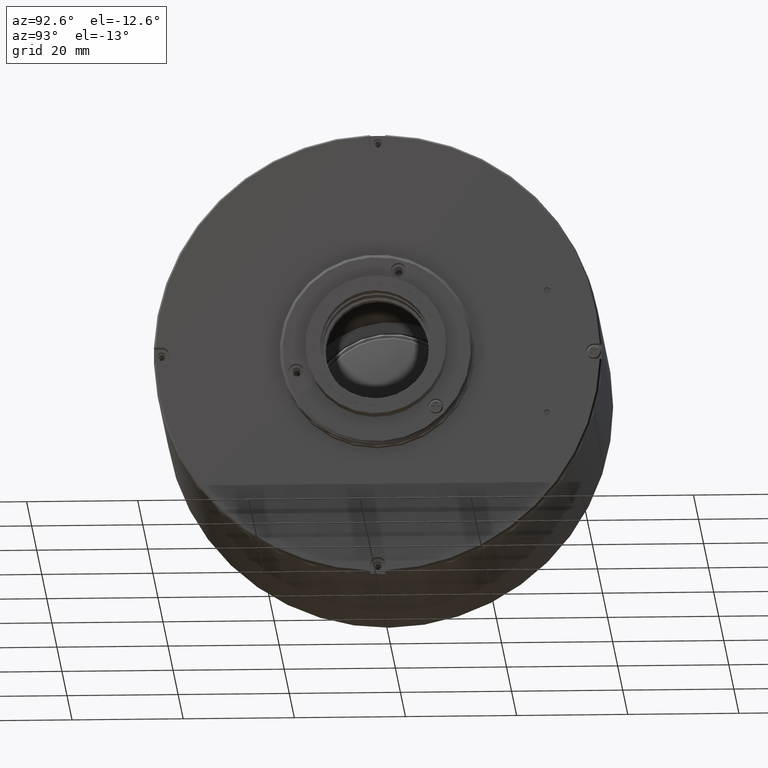
[diagram: clean part render]
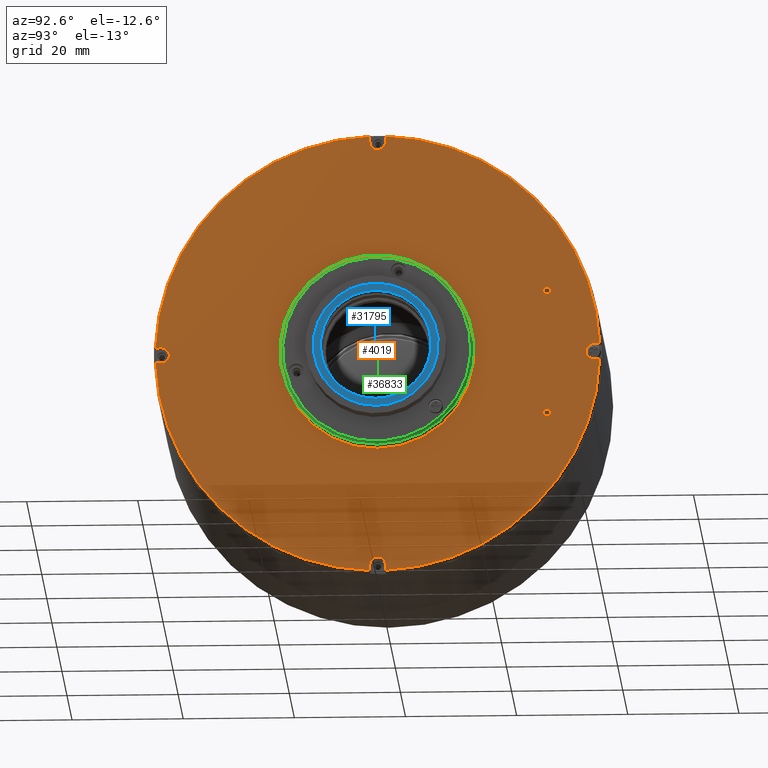
[diagram: same view with three faces highlighted in distinct colors, each labeled with its STEP entity id]
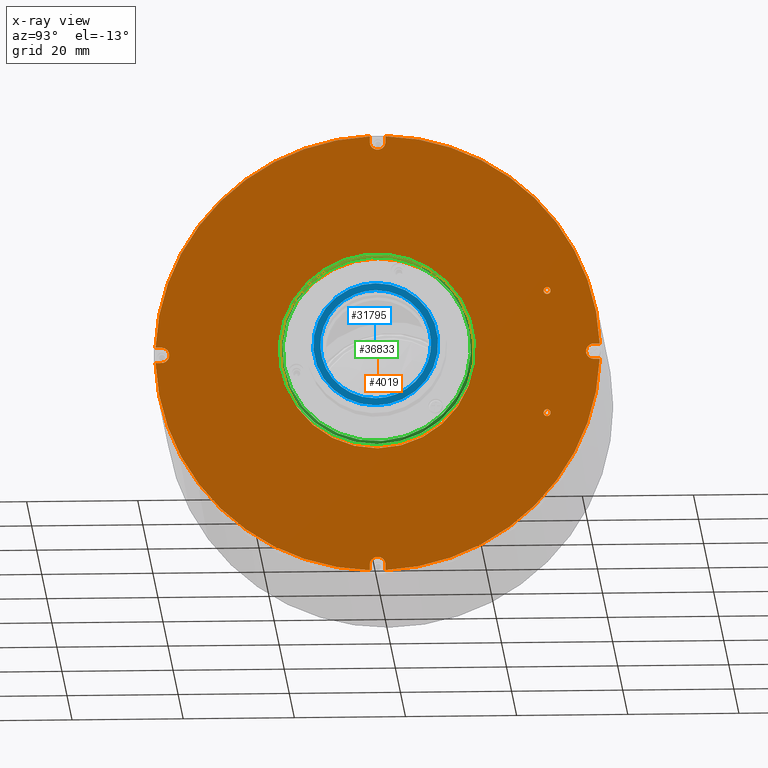
[diagram: x-ray of the same camera — body ghosted, the three highlighted faces saturated]
A machine part, auxiliary view with three faces highlighted in distinct colors.
The next image is the same camera in x-ray (body ghosted, the three faces saturated) — at least one of them is partly hidden behind the body in this view.
Their STEP definitions:

[orange] entity #4019 — the highlighted planar face has unit normal (-1, 0, 0).
#45 = VERTEX_POINT ( 'NONE', #32426 ) ;
#799 = EDGE_CURVE ( 'NONE', #23085, #34651, #17015, .T. ) ;
#1132 = ORIENTED_EDGE ( 'NONE', *, *, #40397, .F. ) ;
#1986 = VECTOR ( 'NONE', #9498, 1000.000000000000000 ) ;
#2314 = FACE_BOUND ( 'NONE', #6673, .T. ) ;
#3309 = CARTESIAN_POINT ( 'NONE',  ( 230.3208642838985156, 30.49999999999997158, -10.62500000000000888 ) ) ;
#4019 = ADVANCED_FACE ( 'NONE', ( #35631, #17383, #39273, #2314 ), #39516, .F. ) ;
#4045 = CARTESIAN_POINT ( 'NONE',  ( 230.3208642838985156, 0.000000000000000000, -1.261029084410195117E-13 ) ) ;
#4149 = DIRECTION ( 'NONE',  ( -1.000000000000000000, 0.000000000000000000, 0.000000000000000000 ) ) ;
#4308 = AXIS2_PLACEMENT_3D ( 'NONE', #4045, #18869, #40983 ) ;
#4562 = DIRECTION ( 'NONE',  ( -0.000000000000000000, -1.000000000000000000, 0.000000000000000000 ) ) ;
#5371 = LINE ( 'NONE', #35278, #1986 ) ;
#5570 = ORIENTED_EDGE ( 'NONE', *, *, #27818, .F. ) ;
#5680 = LINE ( 'NONE', #31686, #38789 ) ;
#5835 = VERTEX_POINT ( 'NONE', #13609 ) ;
#5841 = EDGE_LOOP ( 'NONE', ( #26964 ) ) ;
#5926 = CIRCLE ( 'NONE', #17553, 40.00000000000006395 ) ;
#6303 = CIRCLE ( 'NONE', #37379, 40.00000000000013500 ) ;
#6400 = ORIENTED_EDGE ( 'NONE', *, *, #15422, .F. ) ;
#6539 = DIRECTION ( 'NONE',  ( 0.000000000000000000, 1.000000000000000000, -0.000000000000000000 ) ) ;
#6673 = EDGE_LOOP ( 'NONE', ( #44554 ) ) ;
#6793 = CIRCLE ( 'NONE', #42494, 0.6250000000000976996 ) ;
#6825 = DIRECTION ( 'NONE',  ( 1.000000000000000000, 0.000000000000000000, 0.000000000000000000 ) ) ;
#7299 = EDGE_CURVE ( 'NONE', #40460, #45053, #21837, .T. ) ;
#7530 = DIRECTION ( 'NONE',  ( 0.000000000000000000, 0.000000000000000000, 1.000000000000000000 ) ) ;
#7671 = ORIENTED_EDGE ( 'NONE', *, *, #41838, .F. ) ;
#8092 = AXIS2_PLACEMENT_3D ( 'NONE', #38179, #4149, #45210 ) ;
#8156 = VECTOR ( 'NONE', #33469, 1000.000000000000000 ) ;
#8251 = VERTEX_POINT ( 'NONE', #15808 ) ;
#9423 = ORIENTED_EDGE ( 'NONE', *, *, #24612, .F. ) ;
#9498 = DIRECTION ( 'NONE',  ( -0.000000000000000000, -1.000000000000000000, 0.000000000000000000 ) ) ;
#9557 = DIRECTION ( 'NONE',  ( -0.000000000000000000, -0.000000000000000000, -1.000000000000000000 ) ) ;
#9734 = CARTESIAN_POINT ( 'NONE',  ( 230.3208642838985156, 1.400000000000511946, -1.261029084410195117E-13 ) ) ;
#10560 = EDGE_CURVE ( 'NONE', #20650, #21454, #33116, .T. ) ;
#13005 = ORIENTED_EDGE ( 'NONE', *, *, #27994, .F. ) ;
#13275 = EDGE_CURVE ( 'NONE', #35190, #31405, #5680, .T. ) ;
#13609 = CARTESIAN_POINT ( 'NONE',  ( 230.3208642838985156, 1.400000000000511946, 39.97549249227580503 ) ) ;
#13632 = EDGE_CURVE ( 'NONE', #45053, #5835, #43044, .T. ) ;
#13879 = CARTESIAN_POINT ( 'NONE',  ( 230.3208642838985156, 0.000000000000000000, -1.261029084410195117E-13 ) ) ;
#14117 = CARTESIAN_POINT ( 'NONE',  ( 230.3208642838985156, 4.440892098500626162E-13, 38.89999999999980673 ) ) ;
#14971 = ORIENTED_EDGE ( 'NONE', *, *, #23654, .F. ) ;
#15413 = EDGE_CURVE ( 'NONE', #46628, #42508, #5371, .T. ) ;
#15422 = EDGE_CURVE ( 'NONE', #33037, #40460, #19732, .T. ) ;
#15723 = ORIENTED_EDGE ( 'NONE', *, *, #15413, .F. ) ;
#15808 = CARTESIAN_POINT ( 'NONE',  ( 230.3208642838985156, 30.49999999999997158, 11.87499999999995204 ) ) ;
#16002 = DIRECTION ( 'NONE',  ( 0.000000000000000000, 0.000000000000000000, -1.000000000000000000 ) ) ;
#16124 = VECTOR ( 'NONE', #6539, 1000.000000000000000 ) ;
#16156 = ORIENTED_EDGE ( 'NONE', *, *, #7299, .F. ) ;
#16228 = CARTESIAN_POINT ( 'NONE',  ( 230.3208642838985156, 40.30000000000022453, 1.399999999999860911 ) ) ;
#17015 = LINE ( 'NONE', #43959, #16124 ) ;
#17027 = DIRECTION ( 'NONE',  ( 0.000000000000000000, 0.000000000000000000, 1.000000000000000000 ) ) ;
#17383 = FACE_OUTER_BOUND ( 'NONE', #40134, .T. ) ;
#17550 = AXIS2_PLACEMENT_3D ( 'NONE', #18060, #25344, #32874 ) ;
#17553 = AXIS2_PLACEMENT_3D ( 'NONE', #17992, #40354, #17027 ) ;
#17727 = EDGE_CURVE ( 'NONE', #40725, #40725, #44282, .T. ) ;
#17992 = CARTESIAN_POINT ( 'NONE',  ( 230.3208642838985156, 0.000000000000000000, -1.261029084410195117E-13 ) ) ;
#18060 = CARTESIAN_POINT ( 'NONE',  ( 230.3208642838985156, -2.220446049250313081E-13, -38.90000000000006253 ) ) ;
#18164 = DIRECTION ( 'NONE',  ( 0.000000000000000000, 0.000000000000000000, 1.000000000000000000 ) ) ;
#18561 = CIRCLE ( 'NONE', #20911, 1.399999999999987255 ) ;
#18869 = DIRECTION ( 'NONE',  ( -1.000000000000000000, 0.000000000000000000, 0.000000000000000000 ) ) ;
#19060 = CIRCLE ( 'NONE', #4308, 40.00000000000014211 ) ;
#19506 = AXIS2_PLACEMENT_3D ( 'NONE', #14117, #40121, #40367 ) ;
#19704 = VERTEX_POINT ( 'NONE', #21958 ) ;
#19732 = LINE ( 'NONE', #31615, #39265 ) ;
#20218 = DIRECTION ( 'NONE',  ( 0.000000000000000000, 0.000000000000000000, -1.000000000000000000 ) ) ;
#20650 = VERTEX_POINT ( 'NONE', #32649 ) ;
#20911 = AXIS2_PLACEMENT_3D ( 'NONE', #42480, #26715, #16002 ) ;
#21454 = VERTEX_POINT ( 'NONE', #42047 ) ;
#21527 = CARTESIAN_POINT ( 'NONE',  ( 230.3208642838985156, -1.399999999999623768, 39.97549249227576240 ) ) ;
#21837 = CIRCLE ( 'NONE', #19506, 1.399999999999984590 ) ;
#21958 = CARTESIAN_POINT ( 'NONE',  ( 230.3208642838985156, -39.97549249227594714, 1.399999999999860911 ) ) ;
#22598 = AXIS2_PLACEMENT_3D ( 'NONE', #37840, #44630, #18164 ) ;
#23085 = VERTEX_POINT ( 'NONE', #32654 ) ;
#23459 = EDGE_CURVE ( 'NONE', #46041, #46041, #28287, .T. ) ;
#23594 = DIRECTION ( 'NONE',  ( 0.000000000000000000, 1.000000000000000000, -0.000000000000000000 ) ) ;
#23654 = EDGE_CURVE ( 'NONE', #34651, #36252, #47684, .T. ) ;
#24584 = DIRECTION ( 'NONE',  ( 0.000000000000000000, 0.000000000000000000, 1.000000000000000000 ) ) ;
#24612 = EDGE_CURVE ( 'NONE', #31405, #27932, #19060, .T. ) ;
#24775 = CARTESIAN_POINT ( 'NONE',  ( 230.3208642838985156, 1.400000000000511946, 38.89999999999980673 ) ) ;
#25344 = DIRECTION ( 'NONE',  ( 1.000000000000000000, 0.000000000000000000, -0.000000000000000000 ) ) ;
#26238 = CARTESIAN_POINT ( 'NONE',  ( 230.3208642838985156, -1.399999999999623768, 38.89999999999980673 ) ) ;
#26715 = DIRECTION ( 'NONE',  ( 1.000000000000000000, -0.000000000000000000, -0.000000000000000000 ) ) ;
#26907 = DIRECTION ( 'NONE',  ( 0.000000000000000000, 0.000000000000000000, 1.000000000000000000 ) ) ;
#26964 = ORIENTED_EDGE ( 'NONE', *, *, #23459, .F. ) ;
#27392 = CARTESIAN_POINT ( 'NONE',  ( 230.3208642838985156, 30.49999999999997158, 11.24999999999985434 ) ) ;
#27818 = EDGE_CURVE ( 'NONE', #5835, #46628, #6303, .T. ) ;
#27932 = VERTEX_POINT ( 'NONE', #35479 ) ;
#27994 = EDGE_CURVE ( 'NONE', #27932, #20650, #35014, .T. ) ;
#28287 = CIRCLE ( 'NONE', #45355, 17.50000000000018119 ) ;
#28314 = DIRECTION ( 'NONE',  ( 0.000000000000000000, 0.000000000000000000, 1.000000000000000000 ) ) ;
#28453 = AXIS2_PLACEMENT_3D ( 'NONE', #45724, #38946, #20218 ) ;
#28651 = EDGE_CURVE ( 'NONE', #36252, #45, #29332, .T. ) ;
#29054 = CARTESIAN_POINT ( 'NONE',  ( 230.3208642838985156, 39.97549249227594714, 1.399999999999860911 ) ) ;
#29332 = LINE ( 'NONE', #44390, #8156 ) ;
#29655 = AXIS2_PLACEMENT_3D ( 'NONE', #46783, #32200, #28314 ) ;
#30679 = CARTESIAN_POINT ( 'NONE',  ( 230.3208642838985156, 39.97549249227616741, -1.400000000000113376 ) ) ;
#30817 = VECTOR ( 'NONE', #4562, 1000.000000000000000 ) ;
#31405 = VERTEX_POINT ( 'NONE', #46015 ) ;
#31451 = CARTESIAN_POINT ( 'NONE',  ( 230.3208642838985156, 0.000000000000000000, 17.50000000000005684 ) ) ;
#31615 = CARTESIAN_POINT ( 'NONE',  ( 230.3208642838985156, -1.399999999999623768, -1.261029084410195117E-13 ) ) ;
#31686 = CARTESIAN_POINT ( 'NONE',  ( 230.3208642838985156, -1.400000000000289901, -1.261029084410195117E-13 ) ) ;
#32200 = DIRECTION ( 'NONE',  ( -1.000000000000000000, 0.000000000000000000, 0.000000000000000000 ) ) ;
#32426 = CARTESIAN_POINT ( 'NONE',  ( 230.3208642838985156, 1.399999999999845812, -38.90000000000006253 ) ) ;
#32649 = CARTESIAN_POINT ( 'NONE',  ( 230.3208642838985156, -38.89999999999993463, -1.400000000000113376 ) ) ;
#32654 = CARTESIAN_POINT ( 'NONE',  ( 230.3208642838985156, 38.89999999999993463, -1.400000000000113376 ) ) ;
#32874 = DIRECTION ( 'NONE',  ( 0.000000000000000000, 0.000000000000000000, -1.000000000000000000 ) ) ;
#33037 = VERTEX_POINT ( 'NONE', #21527 ) ;
#33116 = CIRCLE ( 'NONE', #28453, 1.399999999999987255 ) ;
#33317 = EDGE_LOOP ( 'NONE', ( #36509 ) ) ;
#33469 = DIRECTION ( 'NONE',  ( 0.000000000000000000, 0.000000000000000000, 1.000000000000000000 ) ) ;
#33588 = DIRECTION ( 'NONE',  ( 0.000000000000000000, 0.000000000000000000, 1.000000000000000000 ) ) ;
#34086 = ORIENTED_EDGE ( 'NONE', *, *, #13632, .F. ) ;
#34242 = ORIENTED_EDGE ( 'NONE', *, *, #13275, .F. ) ;
#34293 = CARTESIAN_POINT ( 'NONE',  ( 230.3208642838985156, -1.400000000000289901, -38.90000000000006253 ) ) ;
#34651 = VERTEX_POINT ( 'NONE', #30679 ) ;
#35014 = LINE ( 'NONE', #42067, #35313 ) ;
#35190 = VERTEX_POINT ( 'NONE', #34293 ) ;
#35278 = CARTESIAN_POINT ( 'NONE',  ( 230.3208642838985156, 40.30000000000022453, 1.399999999999860911 ) ) ;
#35313 = VECTOR ( 'NONE', #23594, 1000.000000000000000 ) ;
#35479 = CARTESIAN_POINT ( 'NONE',  ( 230.3208642838985156, -39.97549249227594714, -1.400000000000113376 ) ) ;
#35512 = DIRECTION ( 'NONE',  ( -0.000000000000000000, -0.000000000000000000, -1.000000000000000000 ) ) ;
#35513 = EDGE_CURVE ( 'NONE', #21454, #19704, #45388, .T. ) ;
#35631 = FACE_BOUND ( 'NONE', #5841, .T. ) ;
#36252 = VERTEX_POINT ( 'NONE', #41353 ) ;
#36509 = ORIENTED_EDGE ( 'NONE', *, *, #43092, .F. ) ;
#37085 = ORIENTED_EDGE ( 'NONE', *, *, #28651, .F. ) ;
#37379 = AXIS2_PLACEMENT_3D ( 'NONE', #45220, #37946, #33588 ) ;
#37840 = CARTESIAN_POINT ( 'NONE',  ( 230.3208642838985156, 30.49999999999997158, -11.25000000000010658 ) ) ;
#37946 = DIRECTION ( 'NONE',  ( -1.000000000000000000, 0.000000000000000000, 0.000000000000000000 ) ) ;
#38179 = CARTESIAN_POINT ( 'NONE',  ( 230.3208642838983167, 0.000000000000000000, -1.261029084410195117E-13 ) ) ;
#38346 = DIRECTION ( 'NONE',  ( 1.000000000000000000, 0.000000000000000000, 0.000000000000000000 ) ) ;
#38789 = VECTOR ( 'NONE', #9557, 1000.000000000000000 ) ;
#38946 = DIRECTION ( 'NONE',  ( 1.000000000000000000, -0.000000000000000000, -0.000000000000000000 ) ) ;
#39172 = ORIENTED_EDGE ( 'NONE', *, *, #39733, .F. ) ;
#39265 = VECTOR ( 'NONE', #35512, 1000.000000000000000 ) ;
#39273 = FACE_BOUND ( 'NONE', #33317, .T. ) ;
#39516 = PLANE ( 'NONE',  #29655 ) ;
#39705 = CARTESIAN_POINT ( 'NONE',  ( 230.3208642838985156, 38.89999999999993463, 1.399999999999860911 ) ) ;
#39733 = EDGE_CURVE ( 'NONE', #42508, #23085, #18561, .T. ) ;
#40121 = DIRECTION ( 'NONE',  ( 1.000000000000000000, -0.000000000000000000, -0.000000000000000000 ) ) ;
#40134 = EDGE_LOOP ( 'NONE', ( #1132, #40711, #43075, #13005, #9423, #34242, #7671, #37085, #14971, #44098, #39172, #15723, #5570, #34086, #16156, #6400 ) ) ;
#40354 = DIRECTION ( 'NONE',  ( -1.000000000000000000, 0.000000000000000000, 0.000000000000000000 ) ) ;
#40367 = DIRECTION ( 'NONE',  ( 0.000000000000000000, 0.000000000000000000, -1.000000000000000000 ) ) ;
#40397 = EDGE_CURVE ( 'NONE', #19704, #33037, #5926, .T. ) ;
#40460 = VERTEX_POINT ( 'NONE', #26238 ) ;
#40711 = ORIENTED_EDGE ( 'NONE', *, *, #35513, .F. ) ;
#40725 = VERTEX_POINT ( 'NONE', #3309 ) ;
#40983 = DIRECTION ( 'NONE',  ( 0.000000000000000000, 0.000000000000000000, 1.000000000000000000 ) ) ;
#41353 = CARTESIAN_POINT ( 'NONE',  ( 230.3208642838985156, 1.399999999999845812, -39.97549249227625978 ) ) ;
#41838 = EDGE_CURVE ( 'NONE', #45, #35190, #44711, .T. ) ;
#42047 = CARTESIAN_POINT ( 'NONE',  ( 230.3208642838985156, -38.89999999999993463, 1.399999999999860911 ) ) ;
#42067 = CARTESIAN_POINT ( 'NONE',  ( 230.3208642838985156, 40.30000000000022453, -1.400000000000113376 ) ) ;
#42480 = CARTESIAN_POINT ( 'NONE',  ( 230.3208642838985156, 38.89999999999993463, -1.261029084410195117E-13 ) ) ;
#42494 = AXIS2_PLACEMENT_3D ( 'NONE', #27392, #38346, #26907 ) ;
#42508 = VERTEX_POINT ( 'NONE', #39705 ) ;
#43044 = LINE ( 'NONE', #9734, #47330 ) ;
#43075 = ORIENTED_EDGE ( 'NONE', *, *, #10560, .F. ) ;
#43092 = EDGE_CURVE ( 'NONE', #8251, #8251, #6793, .T. ) ;
#43959 = CARTESIAN_POINT ( 'NONE',  ( 230.3208642838985156, 40.30000000000022453, -1.400000000000113376 ) ) ;
#44098 = ORIENTED_EDGE ( 'NONE', *, *, #799, .F. ) ;
#44282 = CIRCLE ( 'NONE', #22598, 0.6250000000000976996 ) ;
#44390 = CARTESIAN_POINT ( 'NONE',  ( 230.3208642838985156, 1.399999999999845812, -1.261029084410195117E-13 ) ) ;
#44554 = ORIENTED_EDGE ( 'NONE', *, *, #17727, .F. ) ;
#44630 = DIRECTION ( 'NONE',  ( 1.000000000000000000, 0.000000000000000000, 0.000000000000000000 ) ) ;
#44711 = CIRCLE ( 'NONE', #17550, 1.399999999999984590 ) ;
#45053 = VERTEX_POINT ( 'NONE', #24775 ) ;
#45210 = DIRECTION ( 'NONE',  ( 0.000000000000000000, 0.000000000000000000, 1.000000000000000000 ) ) ;
#45220 = CARTESIAN_POINT ( 'NONE',  ( 230.3208642838985156, 0.000000000000000000, -1.261029084410195117E-13 ) ) ;
#45355 = AXIS2_PLACEMENT_3D ( 'NONE', #13879, #6825, #7530 ) ;
#45388 = LINE ( 'NONE', #16228, #30817 ) ;
#45724 = CARTESIAN_POINT ( 'NONE',  ( 230.3208642838985156, -38.89999999999993463, -1.261029084410195117E-13 ) ) ;
#46015 = CARTESIAN_POINT ( 'NONE',  ( 230.3208642838985156, -1.400000000000289901, -39.97549249227606794 ) ) ;
#46041 = VERTEX_POINT ( 'NONE', #31451 ) ;
#46628 = VERTEX_POINT ( 'NONE', #29054 ) ;
#46783 = CARTESIAN_POINT ( 'NONE',  ( 230.3208642838985156, 40.30000000000022453, -1.261029084410195117E-13 ) ) ;
#47330 = VECTOR ( 'NONE', #24584, 1000.000000000000000 ) ;
#47684 = CIRCLE ( 'NONE', #8092, 40.00000000000040501 ) ;

[blue] entity #31795 — the highlighted planar face has unit normal (1, 0, 0).
#294 = CARTESIAN_POINT ( 'NONE',  ( 237.7708642838993853, 0.000000000000000000, -9.950000000000249756 ) ) ;
#429 = CARTESIAN_POINT ( 'NONE',  ( 237.7708642838994706, 3.512110753589695822, 9.309633156660460429 ) ) ;
#674 = CARTESIAN_POINT ( 'NONE',  ( 237.7708642838993569, 1.212279403446738124, -9.894629471915221686 ) ) ;
#767 = CARTESIAN_POINT ( 'NONE',  ( 237.7708642838994137, -9.729188553001730355, -2.087356856954774464 ) ) ;
#923 = CARTESIAN_POINT ( 'NONE',  ( 237.7708642838993569, 5.515056024259722633, -8.282126918869490595 ) ) ;
#1233 = CARTESIAN_POINT ( 'NONE',  ( 237.7708642838994422, -8.375062146212403746, 5.372904931278683627 ) ) ;
#1379 = CARTESIAN_POINT ( 'NONE',  ( 237.7708642838993853, 9.807362651379467167, -1.679483798224631119 ) ) ;
#1488 = EDGE_CURVE ( 'NONE', #17292, #45161, #12206, .T. ) ;
#1625 = CARTESIAN_POINT ( 'NONE',  ( 237.7708642838993569, 9.780428772026356299, 1.829222297280502119 ) ) ;
#1720 = CARTESIAN_POINT ( 'NONE',  ( 237.7708642838993853, -9.950016209763361985, 0.3041189143766940828 ) ) ;
#1801 = CARTESIAN_POINT ( 'NONE',  ( 237.7708642838993853, -10.95719261251874777, -2.944663699042087135 ) ) ;
#1940 = CARTESIAN_POINT ( 'NONE',  ( 237.7708642838993853, -3.362676896661477066, 9.370125598191398453 ) ) ;
#2177 = CARTESIAN_POINT ( 'NONE',  ( 237.7708642838993853, -2.906276550472154607, 9.525736452678280841 ) ) ;
#3110 = CARTESIAN_POINT ( 'NONE',  ( 237.7708642838994422, 3.398939787055588191, 9.352079078123310296 ) ) ;
#3359 = CARTESIAN_POINT ( 'NONE',  ( 237.7708642838994422, 8.765365293308697403, 4.729729863896285025 ) ) ;
#3588 = CARTESIAN_POINT ( 'NONE',  ( 237.7708642838993853, 8.282126918866245191, 5.515056024257918743 ) ) ;
#3682 = CARTESIAN_POINT ( 'NONE',  ( 237.7708642838993285, -1.735682371008862246, -9.797460683859755548 ) ) ;
#3933 = CARTESIAN_POINT ( 'NONE',  ( 237.7708642838994137, -5.303460282991175667, -8.419199220546744300 ) ) ;
#4167 = CARTESIAN_POINT ( 'NONE',  ( 237.7708642838994422, -4.945200752561588864, -8.637026693376251174 ) ) ;
#4300 = CARTESIAN_POINT ( 'NONE',  ( 237.7708642838994137, 3.362676896913573188, -9.370125598119919630 ) ) ;
#4546 = CARTESIAN_POINT ( 'NONE',  ( 237.7708642838993853, 5.728837294116397416, -8.135779189401679545 ) ) ;
#4636 = CARTESIAN_POINT ( 'NONE',  ( 237.7708642838993853, -1.285677552345691366, -9.868674536875365888 ) ) ;
#4642 = DIRECTION ( 'NONE',  ( 1.000000000000000000, 0.000000000000000000, 0.000000000000000000 ) ) ;
#4866 = CARTESIAN_POINT ( 'NONE',  ( 237.7708642838993853, -5.515056024332185558, 8.282126918833158769 ) ) ;
#5005 = CARTESIAN_POINT ( 'NONE',  ( 237.7708642838993853, 2.944663699041955685, 10.95719261251862520 ) ) ;
#5012 = CARTESIAN_POINT ( 'NONE',  ( 237.7708642838993853, 2.087356857486446948, -9.729188552805092982 ) ) ;
#5100 = CARTESIAN_POINT ( 'NONE',  ( 237.7708642838994137, -9.868695812189193006, 1.285562548666747240 ) ) ;
#5107 = CARTESIAN_POINT ( 'NONE',  ( 237.7708642838993853, 1143.706911975124967, -1.249004384131939950E-13 ) ) ;
#5250 = CARTESIAN_POINT ( 'NONE',  ( 237.7708642838993853, 4.203029596234642007, -9.021518573288597409 ) ) ;
#5597 = CARTESIAN_POINT ( 'NONE',  ( 237.7708642838993853, -4.203029595852909139, 9.021518573477800729 ) ) ;
#5825 = CARTESIAN_POINT ( 'NONE',  ( 237.7708642838993001, -8.919528751117271170, 4.432150799794416507 ) ) ;
#6790 = CARTESIAN_POINT ( 'NONE',  ( 237.7708642838993853, 0.000000000000000000, -9.950000000000249756 ) ) ;
#6989 = CARTESIAN_POINT ( 'NONE',  ( 237.7708642838994422, 7.987048227834692149, 5.938230153876026485 ) ) ;
#7140 = VERTEX_POINT ( 'NONE', #46680 ) ;
#7228 = CARTESIAN_POINT ( 'NONE',  ( 237.7708642838993853, 1.548373055554790767, 9.829309552064666278 ) ) ;
#7242 = CARTESIAN_POINT ( 'NONE',  ( 237.7708642838993853, 0.000000000000000000, 9.950000000000001066 ) ) ;
#7462 = CARTESIAN_POINT ( 'NONE',  ( 237.7708642838993853, 1.285677552495571474, 9.868674536875117198 ) ) ;
#7553 = CARTESIAN_POINT ( 'NONE',  ( 237.7708642838994137, -8.135779189808319600, -5.728837293661511509 ) ) ;
#7808 = CARTESIAN_POINT ( 'NONE',  ( 237.7708642838993853, -9.220196697839003974, -3.740616507831525883 ) ) ;
#7952 = CARTESIAN_POINT ( 'NONE',  ( 237.7708642838993853, 1.735682371036213256, 9.797460683859508634 ) ) ;
#8037 = CARTESIAN_POINT ( 'NONE',  ( 237.7708642838993001, -9.667929938297902481, -2.362255715138898982 ) ) ;
#8151 = EDGE_CURVE ( 'NONE', #37845, #7140, #18542, .T. ) ;
#8178 = CARTESIAN_POINT ( 'NONE',  ( 237.7708642838994422, 1.829227776752438306, -9.780427757739843742 ) ) ;
#8271 = CARTESIAN_POINT ( 'NONE',  ( 237.7708642838993853, -9.894597014750891262, -1.212454744459427580 ) ) ;
#8422 = CARTESIAN_POINT ( 'NONE',  ( 237.7708642838993569, 6.792994555723317340, -7.278456662302125402 ) ) ;
#8669 = CARTESIAN_POINT ( 'NONE',  ( 237.7708642838994422, 10.95719261251875132, 2.944663699041830007 ) ) ;
#8759 = CARTESIAN_POINT ( 'NONE',  ( 237.7708642838994990, -1.889814205843615369, 9.768904046627108428 ) ) ;
#8902 = CARTESIAN_POINT ( 'NONE',  ( 237.7708642838993569, 9.352079078197860440, -3.398939786987547507 ) ) ;
#8985 = CARTESIAN_POINT ( 'NONE',  ( 237.7708642838993569, -2.087356857293513279, 9.729188552859758587 ) ) ;
#9229 = CARTESIAN_POINT ( 'NONE',  ( 237.7708642838993569, -4.729729863376199717, 8.765365293540586578 ) ) ;
#9314 = CARTESIAN_POINT ( 'NONE',  ( 237.7708642838993569, -5.665713529172727192, 9.830096868985448211 ) ) ;
#9475 = CARTESIAN_POINT ( 'NONE',  ( 237.7708642838994422, -8.507462465132231699, 5.160735628020780119 ) ) ;
#9604 = CARTESIAN_POINT ( 'NONE',  ( 237.7708642838993853, 0.000000000000000000, 11.25000000000007994 ) ) ;
#9697 = CARTESIAN_POINT ( 'NONE',  ( 237.7708642838993853, -5.728837293829770694, 8.135779189628317809 ) ) ;
#10627 = CARTESIAN_POINT ( 'NONE',  ( 237.7708642838994422, 4.432150799617710746, 8.919528751168671832 ) ) ;
#10873 = CARTESIAN_POINT ( 'NONE',  ( 237.7708642838993285, 9.370125597989661159, 3.362676897206919424 ) ) ;
#11203 = CARTESIAN_POINT ( 'NONE',  ( 237.7708642838994706, -3.398939786683097264, -9.352079078209699858 ) ) ;
#11204 = EDGE_CURVE ( 'NONE', #45161, #17292, #28183, .T. ) ;
#11286 = CARTESIAN_POINT ( 'NONE',  ( 237.7708642838994422, -1.472621556370240725, -11.25000000000033040 ) ) ;
#11439 = CARTESIAN_POINT ( 'NONE',  ( 237.7708642838993853, -8.282126918808861760, -5.515056024400301737 ) ) ;
#11688 = CARTESIAN_POINT ( 'NONE',  ( 237.7708642838993569, -9.236552095220135428, -3.700025543131001182 ) ) ;
#11928 = CARTESIAN_POINT ( 'NONE',  ( 237.7708642838993853, -9.776484071636128093, -1.850199078270170494 ) ) ;
#12065 = CARTESIAN_POINT ( 'NONE',  ( 237.7708642838994137, 8.507462464970766192, -5.160735628269084607 ) ) ;
#12162 = CARTESIAN_POINT ( 'NONE',  ( 237.7708642838993569, -1.548373055467398451, -9.829309552064913191 ) ) ;
#12206 = B_SPLINE_CURVE_WITH_KNOTS ( 'NONE', 3,
 ( #294, #15105, #27007, #4636, #12162, #30644, #3682, #41829, #22891, #45461, #41117, #44516, #11203, #41585, #26040, #29937, #34066, #23372, #4167, #37481, #3933, #45230, #44746, #40865, #18520, #33597, #37713, #7553, #22417, #11439, #37235, #18769, #30170, #44987, #26287, #7808, #11688, #26537, #19233, #8037, #767, #37958, #15586, #11928, #26770, #8271, #23135, #1720, #30879, #5100, #16544, #16774, #12649, #13368, #31358, #42786, #31589, #42295, #24083, #28192, #46414, #13126, #20429, #5825, #34779, #9475, #27959, #1233, #42540, #43009, #45701, #46171, #16059, #9697, #12875, #4866, #38197, #9229, #5597, #16302, #27713, #27477, #35256, #1940, #2177, #42077, #8985, #23842, #8759, #38923, #24321, #39150, #20658, #35487 ),
 .UNSPECIFIED., .F., .F.,
 ( 4, 1, 1, 1, 1, 2, 2, 1, 1, 1, 2, 2, 1, 1, 2, 2, 2, 1, 1, 2, 2, 1, 1, 1, 2, 2, 1, 1, 1, 1, 2, 2, 2, 1, 1, 1, 1, 2, 2, 1, 1, 1, 2, 2, 1, 1, 2, 2, 2, 1, 1, 2, 2, 1, 1, 1, 2, 2, 1, 1, 1, 1, 2, 2, 4 ),
 ( 0.000000000000000000, 0.03124999999999986816, 0.04687499999999981265, 0.05468749999999979183, 0.05859374999999978489, 0.06054687499999978489, 0.06249999999999979183, 0.09375000000000031919, 0.1093750000000005967, 0.1171875000000007216, 0.1210937500000007633, 0.1250000000000008049, 0.1562500000000013045, 0.1718750000000016098, 0.1796875000000017208, 0.1875000000000018041, 0.2500000000000027200, 0.2812500000000032196, 0.2968750000000034972, 0.3046875000000037192, 0.3125000000000038858, 0.3437500000000047740, 0.3593750000000052180, 0.3671875000000053846, 0.3710937500000054956, 0.3750000000000055511, 0.4062500000000061062, 0.4218750000000064393, 0.4296875000000065503, 0.4335937500000066613, 0.4355468750000067168, 0.4375000000000067724, 0.5000000000000065503, 0.5312500000000064393, 0.5468750000000063283, 0.5546875000000063283, 0.5585937500000063283, 0.5605468750000063283, 0.5625000000000063283, 0.5937500000000057732, 0.6093750000000056621, 0.6171875000000055511, 0.6210937500000054401, 0.6250000000000054401, 0.6562500000000049960, 0.6718750000000047740, 0.6796875000000047740, 0.6875000000000047740, 0.7500000000000039968, 0.7812500000000036637, 0.7968750000000035527, 0.8046875000000033307, 0.8125000000000032196, 0.8437500000000027756, 0.8593750000000025535, 0.8671875000000024425, 0.8710937500000024425, 0.8750000000000024425, 0.9062500000000017764, 0.9218750000000013323, 0.9296875000000012212, 0.9335937500000012212, 0.9355468750000011102, 0.9375000000000011102, 1.000000000000000000 ),
 .UNSPECIFIED. ) ;
#12309 = CARTESIAN_POINT ( 'NONE',  ( 237.7708642838993853, 9.446184564248135018, -3.133485151875231800 ) ) ;
#12559 = CARTESIAN_POINT ( 'NONE',  ( 237.7708642838994422, 9.949967580473213502, 0.6082378287719525378 ) ) ;
#12649 = CARTESIAN_POINT ( 'NONE',  ( 237.7708642838994137, -9.797464578001701341, 1.735661321228399334 ) ) ;
#12788 = CARTESIAN_POINT ( 'NONE',  ( 237.7708642838993285, 9.830096868985577885, -5.665713529172846208 ) ) ;
#12793 = CARTESIAN_POINT ( 'NONE',  ( 237.7708642838993569, 5.587839263306459081, -8.233224077647767203 ) ) ;
#12875 = CARTESIAN_POINT ( 'NONE',  ( 237.7708642838993853, -5.587839263147222013, 8.233224077773567018 ) ) ;
#13126 = CARTESIAN_POINT ( 'NONE',  ( 237.7708642838993853, -9.266854582148440045, 3.623482781290652710 ) ) ;
#13212 = CARTESIAN_POINT ( 'NONE',  ( 237.7708642838993853, -10.95719261251874777, 2.944663699041832672 ) ) ;
#13368 = CARTESIAN_POINT ( 'NONE',  ( 237.7708642838993853, -9.790757653534745586, 1.773103770737010310 ) ) ;
#14295 = CARTESIAN_POINT ( 'NONE',  ( 237.7708642838994137, 6.019393965092251442, 7.952450860211741634 ) ) ;
#14531 = CARTESIAN_POINT ( 'NONE',  ( 237.7708642838993569, 9.188295918093103865, 3.818321361999635677 ) ) ;
#14771 = CARTESIAN_POINT ( 'NONE',  ( 237.7708642838993853, 9.729188552705721804, 2.087356857710873648 ) ) ;
#15010 = CARTESIAN_POINT ( 'NONE',  ( 237.7708642838993569, 1.790711440220221773, 9.787555237772600947 ) ) ;
#15105 = CARTESIAN_POINT ( 'NONE',  ( 237.7708642838994137, -0.3042065362273879137, -9.950000000000249756 ) ) ;
#15185 = CARTESIAN_POINT ( 'NONE',  ( 237.7708642838994137, -2.944663699041953908, -10.95719261251887566 ) ) ;
#15247 = CARTESIAN_POINT ( 'NONE',  ( 237.7708642838993853, 4.945200752973332392, 8.637026693103324604 ) ) ;
#15493 = CARTESIAN_POINT ( 'NONE',  ( 237.7708642838993853, 0.000000000000000000, -9.950000000000249756 ) ) ;
#15586 = CARTESIAN_POINT ( 'NONE',  ( 237.7708642838993001, -9.768904046671508468, -1.889814205737484487 ) ) ;
#15740 = CARTESIAN_POINT ( 'NONE',  ( 237.7708642838992716, 0.6087686129464953133, -9.950000000000244427 ) ) ;
#15833 = FACE_OUTER_BOUND ( 'NONE', #32134, .T. ) ;
#15964 = CARTESIAN_POINT ( 'NONE',  ( 237.7708642838993569, 1.949185317920604676, -9.757358328263284974 ) ) ;
#16059 = CARTESIAN_POINT ( 'NONE',  ( 237.7708642838993569, -5.938230153571052661, 7.987048228117181736 ) ) ;
#16211 = CARTESIAN_POINT ( 'NONE',  ( 237.7708642838994137, 9.790757653535189675, -1.773103770738393647 ) ) ;
#16302 = CARTESIAN_POINT ( 'NONE',  ( 237.7708642838994137, -3.934509349020224978, 9.139740866754966220 ) ) ;
#16451 = CARTESIAN_POINT ( 'NONE',  ( 237.7708642838994137, 10.95719261251874777, -2.944663699042080029 ) ) ;
#16455 = CARTESIAN_POINT ( 'NONE',  ( 237.7708642838993285, 9.309633156705336532, -3.512110753548843611 ) ) ;
#16544 = CARTESIAN_POINT ( 'NONE',  ( 237.7708642838993853, -9.829321962664813839, 1.548305969988222230 ) ) ;
#16631 = CARTESIAN_POINT ( 'NONE',  ( 237.7708642838994137, -11.25000000000020428, -1.472621556370368845 ) ) ;
#16774 = CARTESIAN_POINT ( 'NONE',  ( 237.7708642838994422, -9.807362651378726426, 1.679483798220600343 ) ) ;
#17292 = VERTEX_POINT ( 'NONE', #6790 ) ;
#17947 = B_SPLINE_CURVE_WITH_KNOTS ( 'NONE', 3,
 ( #9604, #31500, #5005, #27147, #23743, #39057, #38577, #8669, #42438, #20088, #16451, #12788, #38344, #27620, #19850, #34678, #20336, #35160 ),
 .UNSPECIFIED., .F., .F.,
 ( 4, 2, 2, 2, 2, 2, 2, 2, 4 ),
 ( 0.000000000000000000, 0.1250000000000000555, 0.2500000000000001110, 0.3750000000000001665, 0.5000000000000002220, 0.6250000000000002220, 0.7500000000000003331, 0.8750000000000001110, 1.000000000000000000 ),
 .UNSPECIFIED. ) ;
#17948 = CARTESIAN_POINT ( 'NONE',  ( 237.7708642838994137, 3.975018990838887767, 9.127705702980147606 ) ) ;
#18189 = CARTESIAN_POINT ( 'NONE',  ( 237.7708642838993569, 9.220196697783853423, 3.740616507968965720 ) ) ;
#18424 = CARTESIAN_POINT ( 'NONE',  ( 237.7708642838994706, 6.550224093707425865, 7.521148307186439119 ) ) ;
#18520 = CARTESIAN_POINT ( 'NONE',  ( 237.7708642838993853, -7.278456662784298814, -6.792994555184023397 ) ) ;
#18542 = B_SPLINE_CURVE_WITH_KNOTS ( 'NONE', 3,
 ( #44594, #11286, #15185, #30019, #22743, #41205, #44836, #1801, #16631, #24404, #13212, #27095, #31446, #30721, #9314, #46500, #41918, #28043 ),
 .UNSPECIFIED., .F., .F.,
 ( 4, 2, 2, 2, 2, 2, 2, 2, 4 ),
 ( 0.000000000000000000, 0.1249999999999999722, 0.2499999999999999445, 0.3749999999999998890, 0.4999999999999998890, 0.6249999999999998890, 0.7499999999999997780, 0.8749999999999998890, 1.000000000000000000 ),
 .UNSPECIFIED. ) ;
#18670 = CARTESIAN_POINT ( 'NONE',  ( 237.7708642838993853, 0.000000000000000000, 9.950000000000001066 ) ) ;
#18769 = CARTESIAN_POINT ( 'NONE',  ( 237.7708642838993569, -8.765365293708526906, -4.729729862901581150 ) ) ;
#18907 = CARTESIAN_POINT ( 'NONE',  ( 237.7708642838993853, 0.7586779850354832266, 9.929236051968116428 ) ) ;
#19133 = CARTESIAN_POINT ( 'NONE',  ( 237.7708642838993853, 3.934509349242974796, -9.139740866644698869 ) ) ;
#19233 = CARTESIAN_POINT ( 'NONE',  ( 237.7708642838993853, -9.525736453003547766, -2.906276549698164846 ) ) ;
#19382 = CARTESIAN_POINT ( 'NONE',  ( 237.7708642838993569, 8.919528750781909210, -4.432150800309148764 ) ) ;
#19850 = CARTESIAN_POINT ( 'NONE',  ( 237.7708642838993569, 5.665713529172721863, -9.830096868985700453 ) ) ;
#19854 = CARTESIAN_POINT ( 'NONE',  ( 237.7708642838993569, 8.637026692813448037, -4.945200753491842960 ) ) ;
#19951 = DIRECTION ( 'NONE',  ( 0.000000000000000000, 0.000000000000000000, -1.000000000000000000 ) ) ;
#20088 = CARTESIAN_POINT ( 'NONE',  ( 237.7708642838993853, 11.25000000000020428, -1.472621556370365736 ) ) ;
#20094 = CARTESIAN_POINT ( 'NONE',  ( 237.7708642838993853, 9.950016209763584030, -0.3041189143861613986 ) ) ;
#20336 = CARTESIAN_POINT ( 'NONE',  ( 237.7708642838994422, 1.472621556370242724, -11.25000000000033396 ) ) ;
#20429 = CARTESIAN_POINT ( 'NONE',  ( 237.7708642838993569, -9.127705702950771993, 3.975018990939795938 ) ) ;
#20658 = CARTESIAN_POINT ( 'NONE',  ( 237.7708642838993853, -0.6087686126911409090, 9.949999999999999289 ) ) ;
#21843 = CARTESIAN_POINT ( 'NONE',  ( 237.7708642838993853, 8.233224077672508301, 5.587839263256223710 ) ) ;
#22077 = CARTESIAN_POINT ( 'NONE',  ( 237.7708642838994422, 3.623482781303348332, 9.266854582145050756 ) ) ;
#22319 = CARTESIAN_POINT ( 'NONE',  ( 237.7708642838994137, 9.768904046578846589, 1.889814205974557071 ) ) ;
#22417 = CARTESIAN_POINT ( 'NONE',  ( 237.7708642838993853, -8.233224077873439128, -5.587839263053887784 ) ) ;
#22743 = CARTESIAN_POINT ( 'NONE',  ( 237.7708642838994137, -6.913650599717916734, -8.996251976979818821 ) ) ;
#22803 = CARTESIAN_POINT ( 'NONE',  ( 237.7708642838993285, 1.889814205904120525, -9.768904046610128233 ) ) ;
#22891 = CARTESIAN_POINT ( 'NONE',  ( 237.7708642838993853, -1.790711440250882358, -9.787555237765811711 ) ) ;
#23034 = CARTESIAN_POINT ( 'NONE',  ( 237.7708642838993569, 8.419199220345769064, -5.303460283323516045 ) ) ;
#23135 = CARTESIAN_POINT ( 'NONE',  ( 237.7708642838993853, -9.949967580472991457, -0.6082378287537667516 ) ) ;
#23276 = CARTESIAN_POINT ( 'NONE',  ( 237.7708642838993569, 2.906276550913319046, -9.525736452553003275 ) ) ;
#23372 = CARTESIAN_POINT ( 'NONE',  ( 237.7708642838994137, -4.432150799068818259, -8.919528751532487476 ) ) ;
#23743 = CARTESIAN_POINT ( 'NONE',  ( 237.7708642838994137, 6.913650599717917622, 8.996251976979568354 ) ) ;
#23748 = CARTESIAN_POINT ( 'NONE',  ( 237.7708642838993569, 9.829321962665096279, -1.548305969995532827 ) ) ;
#23842 = CARTESIAN_POINT ( 'NONE',  ( 237.7708642838994422, -1.949185317817912155, 9.757358328292466965 ) ) ;
#24083 = CARTESIAN_POINT ( 'NONE',  ( 237.7708642838993853, -9.352079078248671351, 3.398939786718236267 ) ) ;
#24101 = AXIS2_PLACEMENT_3D ( 'NONE', #5107, #4642, #19951 ) ;
#24321 = CARTESIAN_POINT ( 'NONE',  ( 237.7708642838993569, -1.829227776760417923, 9.780427757739595052 ) ) ;
#24404 = CARTESIAN_POINT ( 'NONE',  ( 237.7708642838993853, -11.25000000000020428, 1.472621556370115492 ) ) ;
#24438 = ORIENTED_EDGE ( 'NONE', *, *, #11204, .T. ) ;
#25480 = CARTESIAN_POINT ( 'NONE',  ( 237.7708642838993853, 7.622063912494867033, 6.412084189395325318 ) ) ;
#25723 = CARTESIAN_POINT ( 'NONE',  ( 237.7708642838994706, 9.525736452325128667, 2.906276551426714150 ) ) ;
#26040 = CARTESIAN_POINT ( 'NONE',  ( 237.7708642838993569, -3.587425774353424579, -9.280865875958774325 ) ) ;
#26193 = CARTESIAN_POINT ( 'NONE',  ( 237.7708642838994137, 2.127667271985434372, 9.725219263301989159 ) ) ;
#26287 = CARTESIAN_POINT ( 'NONE',  ( 237.7708642838994137, -9.188295918198271295, -3.818321361737824660 ) ) ;
#26537 = CARTESIAN_POINT ( 'NONE',  ( 237.7708642838994137, -9.370125598377205378, -3.362676896219286338 ) ) ;
#26770 = CARTESIAN_POINT ( 'NONE',  ( 237.7708642838994137, -9.780428772025677731, -1.829222297346040360 ) ) ;
#26911 = CARTESIAN_POINT ( 'NONE',  ( 237.7708642838994422, 3.700025543044013876, -9.236552095252866579 ) ) ;
#27007 = CARTESIAN_POINT ( 'NONE',  ( 237.7708642838993569, -0.7586779848356056677, -9.929236051968361565 ) ) ;
#27095 = CARTESIAN_POINT ( 'NONE',  ( 237.7708642838994137, -9.830096868985576108, 5.665713529172599294 ) ) ;
#27147 = CARTESIAN_POINT ( 'NONE',  ( 237.7708642838994137, 5.665713529172720975, 9.830096868985455316 ) ) ;
#27154 = CARTESIAN_POINT ( 'NONE',  ( 237.7708642838993569, 5.163461133872670139, -8.512019007651080216 ) ) ;
#27225 = ORIENTED_EDGE ( 'NONE', *, *, #8151, .F. ) ;
#27395 = CARTESIAN_POINT ( 'NONE',  ( 237.7708642838993853, 5.938230154016918227, -7.987048227764493191 ) ) ;
#27477 = CARTESIAN_POINT ( 'NONE',  ( 237.7708642838994137, -3.740616507896963316, 9.220196697815930875 ) ) ;
#27485 = PLANE ( 'NONE',  #24101 ) ;
#27620 = CARTESIAN_POINT ( 'NONE',  ( 237.7708642838993569, 6.913650599717917622, -8.996251976979813492 ) ) ;
#27624 = CARTESIAN_POINT ( 'NONE',  ( 237.7708642838993853, 8.375062146179502065, -5.372904931330017675 ) ) ;
#27713 = CARTESIAN_POINT ( 'NONE',  ( 237.7708642838994422, -3.818321361862622609, 9.188295918154159025 ) ) ;
#27959 = CARTESIAN_POINT ( 'NONE',  ( 237.7708642838993853, -8.419199220435215736, 5.303460283185459367 ) ) ;
#28043 = CARTESIAN_POINT ( 'NONE',  ( 237.7708642838993853, 0.000000000000000000, 11.25000000000007994 ) ) ;
#28183 = B_SPLINE_CURVE_WITH_KNOTS ( 'NONE', 3,
 ( #18670, #41269, #18907, #7462, #7228, #47593, #7952, #36413, #15010, #26193, #33008, #33732, #3110, #429, #44651, #22077, #17948, #10627, #15247, #30080, #44898, #36892, #14295, #18424, #44421, #25480, #6989, #29369, #21843, #3588, #36663, #3359, #37138, #47825, #14531, #18189, #44181, #10873, #25723, #33256, #14771, #29606, #22319, #30781, #1625, #45607, #12559, #20094, #31272, #37863, #23748, #1379, #45850, #16211, #31027, #34223, #33970, #12309, #8902, #16455, #37619, #38581, #46087, #19382, #19854, #12065, #23034, #27624, #41494, #41728, #8422, #34685, #27395, #4546, #12793, #923, #27154, #30327, #5250, #19133, #34928, #42444, #26911, #4300, #23276, #42217, #5012, #15964, #22803, #38349, #8178, #674, #15740, #15493 ),
 .UNSPECIFIED., .F., .F.,
 ( 4, 1, 1, 1, 1, 2, 2, 1, 1, 1, 2, 2, 1, 1, 2, 2, 2, 1, 1, 2, 2, 1, 1, 1, 2, 2, 1, 1, 1, 1, 2, 2, 2, 1, 1, 1, 1, 2, 2, 1, 1, 1, 2, 2, 1, 1, 2, 2, 2, 1, 1, 2, 2, 1, 1, 1, 2, 2, 1, 1, 1, 1, 2, 2, 4 ),
 ( 0.000000000000000000, 0.03124999999999975020, 0.04687499999999962530, 0.05468749999999956285, 0.05859374999999952122, 0.06054687499999949346, 0.06249999999999947264, 0.09374999999999904243, 0.1093749999999988343, 0.1171874999999987094, 0.1210937499999986539, 0.1249999999999986122, 0.1562499999999984457, 0.1718749999999983902, 0.1796874999999983347, 0.1874999999999983069, 0.2499999999999979183, 0.2812499999999977796, 0.2968749999999976130, 0.3046874999999975575, 0.3124999999999975020, 0.3437499999999972800, 0.3593749999999972244, 0.3671874999999971689, 0.3710937499999971689, 0.3749999999999971134, 0.4062499999999968914, 0.4218749999999967804, 0.4296874999999967248, 0.4335937499999966693, 0.4355468749999966138, 0.4374999999999966138, 0.4999999999999958922, 0.5312499999999955591, 0.5468749999999954481, 0.5546874999999953371, 0.5585937499999953371, 0.5605468749999953371, 0.5624999999999953371, 0.5937499999999951150, 0.6093749999999950040, 0.6171874999999950040, 0.6210937499999948930, 0.6249999999999948930, 0.6562499999999948930, 0.6718749999999950040, 0.6796874999999950040, 0.6874999999999950040, 0.7499999999999952260, 0.7812499999999952260, 0.7968749999999953371, 0.8046874999999954481, 0.8124999999999955591, 0.8437499999999960032, 0.8593749999999962252, 0.8671874999999964473, 0.8710937499999964473, 0.8749999999999965583, 0.9062499999999977796, 0.9218749999999983347, 0.9296874999999985567, 0.9335937499999986677, 0.9355468749999987788, 0.9374999999999987788, 1.000000000000000000 ),
 .UNSPECIFIED. ) ;
#28192 = CARTESIAN_POINT ( 'NONE',  ( 237.7708642838993853, -9.309633156735925397, 3.512110753386608053 ) ) ;
#28680 = ORIENTED_EDGE ( 'NONE', *, *, #32986, .F. ) ;
#29369 = CARTESIAN_POINT ( 'NONE',  ( 237.7708642838993853, 8.135779189446589399, 5.728837294025912463 ) ) ;
#29606 = CARTESIAN_POINT ( 'NONE',  ( 237.7708642838993569, 9.757358328210170129, 1.949185318041525949 ) ) ;
#29937 = CARTESIAN_POINT ( 'NONE',  ( 237.7708642838994137, -3.623482781342789227, -9.266854582119330885 ) ) ;
#30019 = CARTESIAN_POINT ( 'NONE',  ( 237.7708642838994137, -5.665713529172720087, -9.830096868985705783 ) ) ;
#30080 = CARTESIAN_POINT ( 'NONE',  ( 237.7708642838993853, 5.160735627935856051, 8.507462465157040299 ) ) ;
#30170 = CARTESIAN_POINT ( 'NONE',  ( 237.7708642838993853, -9.021518573603781732, -4.203029595496997395 ) ) ;
#30327 = CARTESIAN_POINT ( 'NONE',  ( 237.7708642838993569, 4.729729863885309804, -8.765365293288233772 ) ) ;
#30644 = CARTESIAN_POINT ( 'NONE',  ( 237.7708642838994422, -1.679519736870242808, -9.807356002843702569 ) ) ;
#30721 = CARTESIAN_POINT ( 'NONE',  ( 237.7708642838993285, -6.913650599717918510, 8.996251976979561249 ) ) ;
#30781 = CARTESIAN_POINT ( 'NONE',  ( 237.7708642838993853, 9.776484071588905422, 1.850199078391475238 ) ) ;
#30879 = CARTESIAN_POINT ( 'NONE',  ( 237.7708642838993853, -9.929264419054099733, 0.7585246465969109897 ) ) ;
#31027 = CARTESIAN_POINT ( 'NONE',  ( 237.7708642838994422, 9.787555237766893512, -1.790711440226257167 ) ) ;
#31272 = CARTESIAN_POINT ( 'NONE',  ( 237.7708642838993569, 9.929264419054321777, -0.7585246466133040988 ) ) ;
#31358 = CARTESIAN_POINT ( 'NONE',  ( 237.7708642838993853, -9.787555237762060045, 1.790711440247972686 ) ) ;
#31446 = CARTESIAN_POINT ( 'NONE',  ( 237.7708642838994422, -8.996251976979692699, 6.913650599717793277 ) ) ;
#31500 = CARTESIAN_POINT ( 'NONE',  ( 237.7708642838993853, 1.472621556370242057, 11.25000000000007994 ) ) ;
#31589 = CARTESIAN_POINT ( 'NONE',  ( 237.7708642838993569, -9.614655546734537594, 2.597019695158158115 ) ) ;
#31795 = ADVANCED_FACE ( 'NONE', ( #15833, #38438 ), #27485, .T. ) ;
#32134 = EDGE_LOOP ( 'NONE', ( #28680, #27225 ) ) ;
#32986 = EDGE_CURVE ( 'NONE', #7140, #37845, #17947, .T. ) ;
#33008 = CARTESIAN_POINT ( 'NONE',  ( 237.7708642838993853, 2.597019695929181360, 9.614655546448073409 ) ) ;
#33256 = CARTESIAN_POINT ( 'NONE',  ( 237.7708642838994422, 9.667929937788940720, 2.362255716435245567 ) ) ;
#33597 = CARTESIAN_POINT ( 'NONE',  ( 237.7708642838994422, -7.622063913245529676, -6.412084188639263438 ) ) ;
#33732 = CARTESIAN_POINT ( 'NONE',  ( 237.7708642838994990, 3.133485151992077444, 9.446184564120182259 ) ) ;
#33809 = CARTESIAN_POINT ( 'NONE',  ( 237.7708642838993853, 0.000000000000000000, -11.25000000000032863 ) ) ;
#33970 = CARTESIAN_POINT ( 'NONE',  ( 237.7708642838994137, 9.614655546618553927, -2.597019695773409076 ) ) ;
#34066 = CARTESIAN_POINT ( 'NONE',  ( 237.7708642838993853, -3.975018990525361673, -9.127705703188146558 ) ) ;
#34223 = CARTESIAN_POINT ( 'NONE',  ( 237.7708642838993569, 9.725219263399640823, -2.127667271896669821 ) ) ;
#34678 = CARTESIAN_POINT ( 'NONE',  ( 237.7708642838994137, 2.944663699041957905, -10.95719261251887566 ) ) ;
#34685 = CARTESIAN_POINT ( 'NONE',  ( 237.7708642838994137, 6.412084189583130645, -7.622063912401387142 ) ) ;
#34779 = CARTESIAN_POINT ( 'NONE',  ( 237.7708642838993853, -8.637026693064987271, 4.945200753105732261 ) ) ;
#34928 = CARTESIAN_POINT ( 'NONE',  ( 237.7708642838994990, 3.818321361996793062, -9.188295918087877823 ) ) ;
#35160 = CARTESIAN_POINT ( 'NONE',  ( 237.7708642838993853, 0.000000000000000000, -11.25000000000032863 ) ) ;
#35256 = CARTESIAN_POINT ( 'NONE',  ( 237.7708642838994137, -3.700025543075275092, 9.236552095243641958 ) ) ;
#35487 = CARTESIAN_POINT ( 'NONE',  ( 237.7708642838993853, 0.000000000000000000, 9.950000000000001066 ) ) ;
#36413 = CARTESIAN_POINT ( 'NONE',  ( 237.7708642838993569, 1.773114552345805395, 9.790755658974207520 ) ) ;
#36663 = CARTESIAN_POINT ( 'NONE',  ( 237.7708642838993853, 8.512019007662702919, 5.163461133878894493 ) ) ;
#36892 = CARTESIAN_POINT ( 'NONE',  ( 237.7708642838994422, 5.372904931318570831, 8.375062146177290501 ) ) ;
#37138 = CARTESIAN_POINT ( 'NONE',  ( 237.7708642838994422, 9.021518573303834998, 4.203029596242958021 ) ) ;
#37235 = CARTESIAN_POINT ( 'NONE',  ( 237.7708642838993853, -8.512019007891117539, -5.163461133310599749 ) ) ;
#37481 = CARTESIAN_POINT ( 'NONE',  ( 237.7708642838993569, -5.160735627670990588, -8.507462465332583434 ) ) ;
#37521 = EDGE_LOOP ( 'NONE', ( #24438, #46051 ) ) ;
#37619 = CARTESIAN_POINT ( 'NONE',  ( 237.7708642838993569, 9.280865875954848576, -3.587425774449773286 ) ) ;
#37713 = CARTESIAN_POINT ( 'NONE',  ( 237.7708642838993853, -7.987048228397169325, -5.938230153309036474 ) ) ;
#37845 = VERTEX_POINT ( 'NONE', #33809 ) ;
#37863 = CARTESIAN_POINT ( 'NONE',  ( 237.7708642838993853, 9.868695812189926642, -1.285562548679099137 ) ) ;
#37958 = CARTESIAN_POINT ( 'NONE',  ( 237.7708642838993569, -9.757358328368612277, -1.949185317636590975 ) ) ;
#38197 = CARTESIAN_POINT ( 'NONE',  ( 237.7708642838994137, -5.163461133581717100, 8.512019007795178283 ) ) ;
#38344 = CARTESIAN_POINT ( 'NONE',  ( 237.7708642838994137, 8.996251976979694476, -6.913650599718041079 ) ) ;
#38349 = CARTESIAN_POINT ( 'NONE',  ( 237.7708642838994706, 1.850199078355426296, -9.776484071604951254 ) ) ;
#38438 = FACE_BOUND ( 'NONE', #37521, .T. ) ;
#38577 = CARTESIAN_POINT ( 'NONE',  ( 237.7708642838994137, 9.830096868985579661, 5.665713529172596630 ) ) ;
#38581 = CARTESIAN_POINT ( 'NONE',  ( 237.7708642838994422, 9.266854582172651789, -3.623482781254152130 ) ) ;
#38923 = CARTESIAN_POINT ( 'NONE',  ( 237.7708642838993569, -1.850199078324449076, 9.776484071613520399 ) ) ;
#39057 = CARTESIAN_POINT ( 'NONE',  ( 237.7708642838994137, 8.996251976979692699, 6.913650599717794165 ) ) ;
#39150 = CARTESIAN_POINT ( 'NONE',  ( 237.7708642838993853, -1.212279403191383720, 9.894629471914972996 ) ) ;
#40865 = CARTESIAN_POINT ( 'NONE',  ( 237.7708642838994422, -6.550224092849370017, -7.521148308051049725 ) ) ;
#41117 = CARTESIAN_POINT ( 'NONE',  ( 237.7708642838994422, -2.597019695077011914, -9.614655546645199280 ) ) ;
#41205 = CARTESIAN_POINT ( 'NONE',  ( 237.7708642838993285, -8.996251976979687370, -6.913650599718044631 ) ) ;
#41269 = CARTESIAN_POINT ( 'NONE',  ( 237.7708642838993285, 0.3042065363416667778, 9.950000000000001066 ) ) ;
#41494 = CARTESIAN_POINT ( 'NONE',  ( 237.7708642838993285, 7.952450860195801496, -6.019393965001079927 ) ) ;
#41585 = CARTESIAN_POINT ( 'NONE',  ( 237.7708642838994137, -3.512110753365460081, -9.309633156712568081 ) ) ;
#41728 = CARTESIAN_POINT ( 'NONE',  ( 237.7708642838993853, 7.521148306972003539, -6.550224093814819959 ) ) ;
#41829 = CARTESIAN_POINT ( 'NONE',  ( 237.7708642838994137, -1.773114552331854554, -9.790755658974456210 ) ) ;
#41918 = CARTESIAN_POINT ( 'NONE',  ( 237.7708642838993569, -1.472621556370245832, 11.25000000000007816 ) ) ;
#42077 = CARTESIAN_POINT ( 'NONE',  ( 237.7708642838994422, -2.362255715719390192, 9.667929938053612560 ) ) ;
#42217 = CARTESIAN_POINT ( 'NONE',  ( 237.7708642838993853, 2.362255716050086995, -9.667929937959712561 ) ) ;
#42295 = CARTESIAN_POINT ( 'NONE',  ( 237.7708642838993569, -9.446184564335139200, 3.133485151413728964 ) ) ;
#42438 = CARTESIAN_POINT ( 'NONE',  ( 237.7708642838994137, 11.25000000000020606, 1.472621556370118823 ) ) ;
#42444 = CARTESIAN_POINT ( 'NONE',  ( 237.7708642838994422, 3.740616507967518434, -9.220196697781224415 ) ) ;
#42540 = CARTESIAN_POINT ( 'NONE',  ( 237.7708642838993569, -7.952450859928609006, 6.019393965409506109 ) ) ;
#42786 = CARTESIAN_POINT ( 'NONE',  ( 237.7708642838993853, -9.725219263465660902, 2.127667271544985805 ) ) ;
#43009 = CARTESIAN_POINT ( 'NONE',  ( 237.7708642838993285, -7.521148307651081666, 6.550224093276771242 ) ) ;
#44181 = CARTESIAN_POINT ( 'NONE',  ( 237.7708642838994422, 9.236552095268832474, 3.700025543007261497 ) ) ;
#44421 = CARTESIAN_POINT ( 'NONE',  ( 237.7708642838993853, 7.278456662355601736, 6.792994555615951668 ) ) ;
#44516 = CARTESIAN_POINT ( 'NONE',  ( 237.7708642838993285, -3.133485151353106346, -9.446184564268081729 ) ) ;
#44594 = CARTESIAN_POINT ( 'NONE',  ( 237.7708642838993853, 0.000000000000000000, -11.25000000000032863 ) ) ;
#44651 = CARTESIAN_POINT ( 'NONE',  ( 237.7708642838993853, 3.587425774471138862, 9.280865875931276321 ) ) ;
#44746 = CARTESIAN_POINT ( 'NONE',  ( 237.7708642838994422, -6.019393965127406432, -7.952450860183316372 ) ) ;
#44836 = CARTESIAN_POINT ( 'NONE',  ( 237.7708642838993569, -9.830096868985574332, -5.665713529172849761 ) ) ;
#44898 = CARTESIAN_POINT ( 'NONE',  ( 237.7708642838994422, 5.303460283138423215, 8.419199220449112175 ) ) ;
#44987 = CARTESIAN_POINT ( 'NONE',  ( 237.7708642838994990, -9.139740866828509169, -3.934509348812853524 ) ) ;
#45161 = VERTEX_POINT ( 'NONE', #7242 ) ;
#45230 = CARTESIAN_POINT ( 'NONE',  ( 237.7708642838993853, -5.372904931313925658, -8.375062146181127432 ) ) ;
#45461 = CARTESIAN_POINT ( 'NONE',  ( 237.7708642838993569, -2.127667271498638435, -9.725219263414734527 ) ) ;
#45607 = CARTESIAN_POINT ( 'NONE',  ( 237.7708642838994422, 9.894597014751113306, 1.212454746548314644 ) ) ;
#45701 = CARTESIAN_POINT ( 'NONE',  ( 237.7708642838993853, -6.792994555383436328, 7.278456662570783386 ) ) ;
#45850 = CARTESIAN_POINT ( 'NONE',  ( 237.7708642838994422, 9.797464578002143654, -1.735661321230863807 ) ) ;
#46051 = ORIENTED_EDGE ( 'NONE', *, *, #1488, .T. ) ;
#46087 = CARTESIAN_POINT ( 'NONE',  ( 237.7708642838994422, 9.127705702759078221, -3.975018991234034349 ) ) ;
#46171 = CARTESIAN_POINT ( 'NONE',  ( 237.7708642838993569, -6.412084188988678157, 7.622063912871717584 ) ) ;
#46414 = CARTESIAN_POINT ( 'NONE',  ( 237.7708642838994706, -9.280865875970894407, 3.587425774364414011 ) ) ;
#46500 = CARTESIAN_POINT ( 'NONE',  ( 237.7708642838993285, -2.944663699041961014, 10.95719261251861809 ) ) ;
#46680 = CARTESIAN_POINT ( 'NONE',  ( 237.7708642838993853, 0.000000000000000000, 11.25000000000007994 ) ) ;
#47593 = CARTESIAN_POINT ( 'NONE',  ( 237.7708642838993853, 1.679519736917215011, 9.807356002843453879 ) ) ;
#47825 = CARTESIAN_POINT ( 'NONE',  ( 237.7708642838993853, 9.139740866653673024, 3.934509349247891308 ) ) ;

[green] entity #36833 — the highlighted conical surface has half-angle 68.199 deg.
#2089 = CARTESIAN_POINT ( 'NONE',  ( 233.5608631772994102, 12.33901333170526193, 12.33901333170540049 ) ) ;
#3090 = EDGE_LOOP ( 'NONE', ( #10375 ) ) ;
#4806 = CARTESIAN_POINT ( 'NONE',  ( 233.7608642838986270, 0.000000000000000000, -1.110223024625156540E-13 ) ) ;
#9578 = DIRECTION ( 'NONE',  ( -1.000000000000000000, -1.220675544617802473E-17, 2.983809361105927029E-18 ) ) ;
#10056 = DIRECTION ( 'NONE',  ( 0.000000000000000000, 0.7071067811865403563, 0.7071067811865545671 ) ) ;
#10375 = ORIENTED_EDGE ( 'NONE', *, *, #24162, .T. ) ;
#12079 = FACE_OUTER_BOUND ( 'NONE', #18044, .T. ) ;
#12320 = DIRECTION ( 'NONE',  ( -1.000000000000000000, -4.511039015285072452E-15, 4.501816069199909828E-15 ) ) ;
#13962 = CARTESIAN_POINT ( 'NONE',  ( 233.5608631772994102, 0.000000000000000000, -1.110223024625156540E-13 ) ) ;
#15294 = EDGE_CURVE ( 'NONE', #39289, #39289, #36161, .T. ) ;
#16849 = ORIENTED_EDGE ( 'NONE', *, *, #15294, .F. ) ;
#18044 = EDGE_LOOP ( 'NONE', ( #16849 ) ) ;
#19405 = DIRECTION ( 'NONE',  ( -1.000000000000000000, -4.511039015285072452E-15, 4.501816069199909828E-15 ) ) ;
#22165 = CIRCLE ( 'NONE', #43091, 16.94999731280022459 ) ;
#24162 = EDGE_CURVE ( 'NONE', #43344, #43344, #22165, .T. ) ;
#26835 = AXIS2_PLACEMENT_3D ( 'NONE', #13962, #9578, #10056 ) ;
#26920 = CARTESIAN_POINT ( 'NONE',  ( 233.5608631772994102, 0.000000000000000000, -1.110223024625156540E-13 ) ) ;
#27165 = DIRECTION ( 'NONE',  ( 6.362309596705702572E-15, -0.7071067811865545671, 0.7071067811865403563 ) ) ;
#34475 = DIRECTION ( 'NONE',  ( 6.549989384285879597E-15, -0.7071067811865546782, 0.7071067811865403563 ) ) ;
#36161 = CIRCLE ( 'NONE', #26835, 17.45000000000018758 ) ;
#36833 = ADVANCED_FACE ( 'NONE', ( #12079, #45618 ), #43328, .T. ) ;
#38724 = AXIS2_PLACEMENT_3D ( 'NONE', #26920, #12320, #27165 ) ;
#39289 = VERTEX_POINT ( 'NONE', #2089 ) ;
#43091 = AXIS2_PLACEMENT_3D ( 'NONE', #4806, #19405, #34475 ) ;
#43328 = CONICAL_SURFACE ( 'NONE', #38724, 17.45000000000018048, 1.190289894994460917 ) ;
#43344 = VERTEX_POINT ( 'NONE', #46986 ) ;
#45618 = FACE_BOUND ( 'NONE', #3090, .T. ) ;
#46986 = CARTESIAN_POINT ( 'NONE',  ( 233.7608642838987407, -11.98545804097491896, 11.98545804097456546 ) ) ;